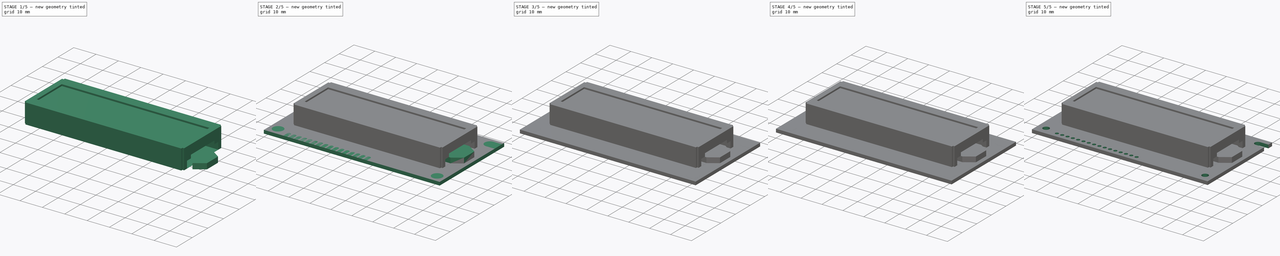
[diagram: build sequence overview — one tinted view per stage of 5, left to right]
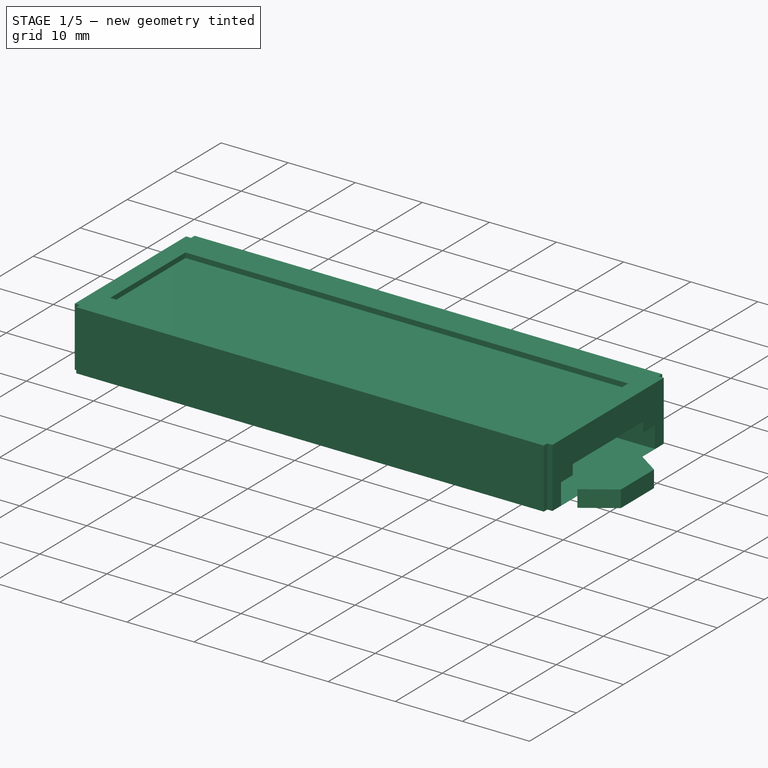
[diagram: stage 1 of 5 — iso view after this stage's code; geometry added in this stage tinted green]
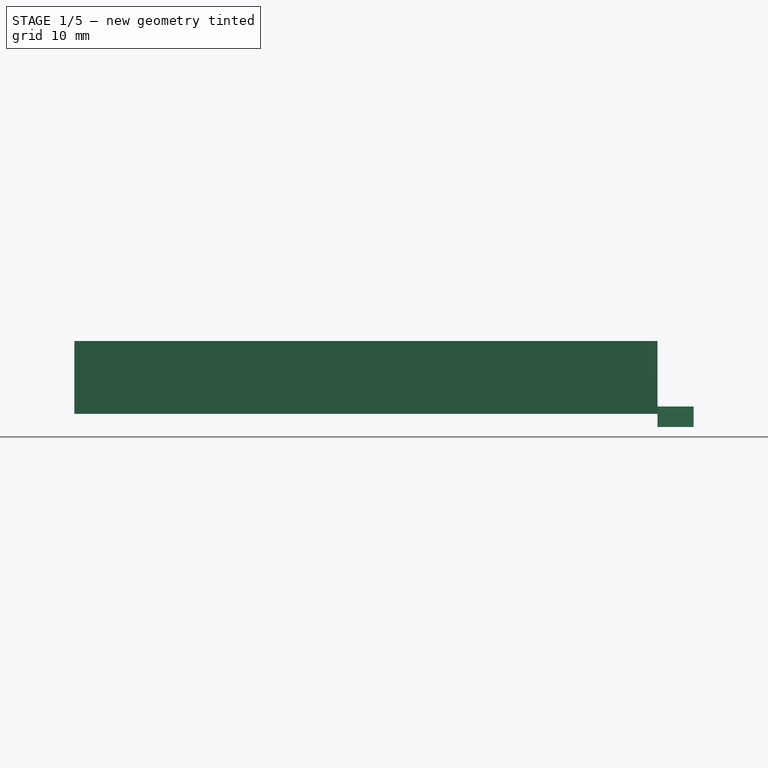
[diagram: stage 1 of 5 — front view after this stage's code; geometry added in this stage tinted green]
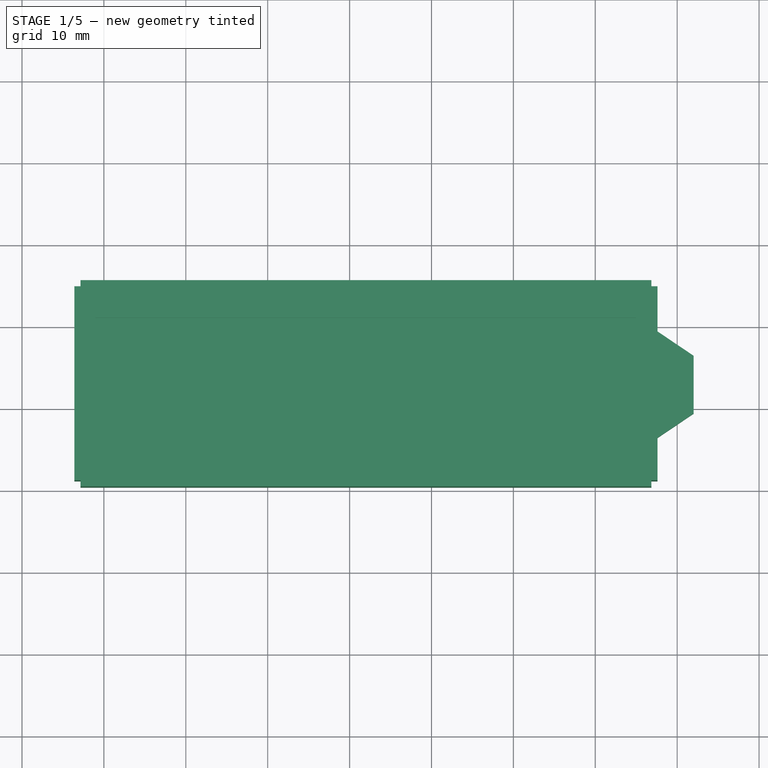
[diagram: stage 1 of 5 — top view after this stage's code; geometry added in this stage tinted green]
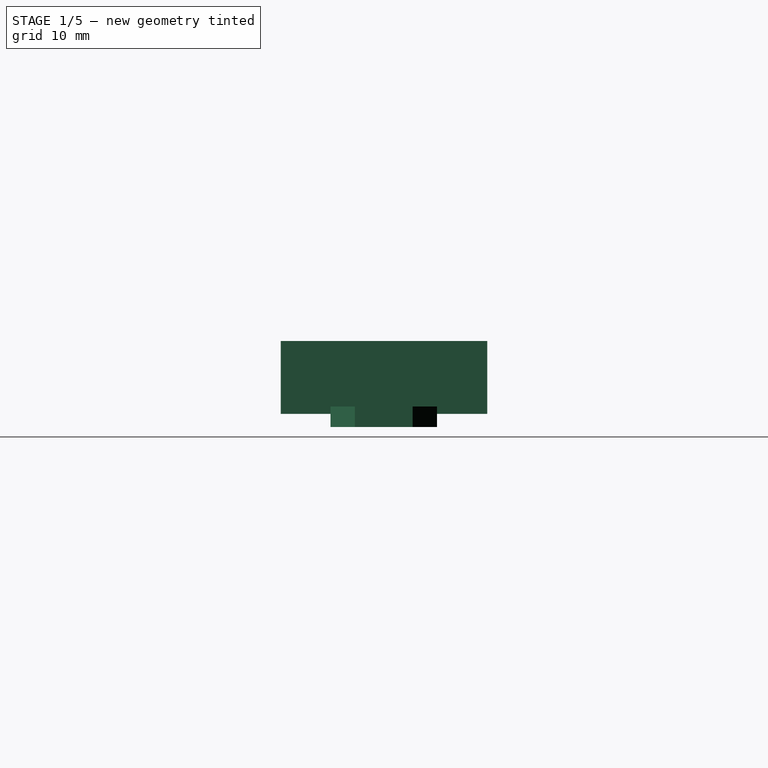
[diagram: stage 1 of 5 — right view after this stage's code; geometry added in this stage tinted green]
FCSTD DOCUMENT  (FreeCAD 0.18R4 (GitTag))
Label: LCD 12x02 (YMC162-329AACFDCL)
License: All rights reserved
LicenseURL: http://en.wikipedia.org/wiki/All_rights_reserved
objects: Part::Box×11, Part::FeaturePython×8, Part::Cylinder×5, Sketcher::SketchObject×4, PartDesign::Pad×4, PartDesign::Body×4, Part::MultiFuse×4, Part::Sphere×2, Part::Feature×2, Part::Mirroring×2, Part::Cut×2, Part::Fillet×1
note: 53 computed .brp shape members not serialized (recipe doc carries the construction recipe); baked Part::Feature solids carry a one-line shape summary decoded from their .brp

FEATURE [Part::Box] Box009  label="Solid Panel"
  AttacherType = Attacher::AttachEngine3D
  Height = 8.9
  Length = 71.2
  Placement = pos=(6.4,10.4,1.6) rot=(0,0,1;0rad)
  Width = 25.2
FEATURE [Part::Box] Box010  label="Panel Edge"
  AttacherType = Attacher::AttachEngine3D
  Height = 9
  Length = 0.75
  Placement = pos=(6.4,10.4,1.6) rot=(0,0,1;0rad)
  Width = 0.75
FEATURE [Part::FeaturePython] Array007  label="Panel Edges"  # Draft array (typed FeaturePython)
  Angle = 360
  ArrayType = 0
  Axis = (0,0,1)
  Base = -> Box010
  Center = (0,0,0)
  Fuse = false
  IntervalAxis = (0,0,0)
  IntervalX = (70.45,0,0)
  IntervalY = (0,24.45,0)
  IntervalZ = (0,0,1)
  NumberPolar = 1
  NumberX = 2
  NumberY = 2
  NumberZ = 1
FEATURE [Part::Box] Box011  label="Screen"
  AttacherType = Attacher::AttachEngine3D
  Height = 0.75
  Length = 66
  Placement = pos=(9,15,9.75) rot=(0,0,1;0rad)
  Width = 16
FEATURE [Sketcher::SketchObject] Sketch002
  MapMode = 5
  Placement = pos=(0,0,0) rot=(0.57735,0.57735,0.57735;2.0944rad)
  Support = -> [YZ_Plane002]
  sketch-geometry (8):
    g0: LineSegment StartX=12.9828 StartY=1.6197 StartZ=0 EndX=12.9828 EndY=4.7697 EndZ=0
    g1: LineSegment StartX=12.9828 StartY=4.7697 StartZ=0 EndX=15.4828 EndY=4.7697 EndZ=0
    g2: LineSegment StartX=15.4828 StartY=4.7697 StartZ=0 EndX=15.4828 EndY=6.2697 EndZ=0
    g3: LineSegment StartX=15.4828 StartY=6.2697 StartZ=0 EndX=30.4828 EndY=6.2697 EndZ=0
    g4: LineSegment StartX=30.4828 StartY=6.2697 StartZ=0 EndX=30.4828 EndY=4.7697 EndZ=0
    g5: LineSegment StartX=30.4828 StartY=4.7697 StartZ=0 EndX=32.9828 EndY=4.7697 EndZ=0
    g6: LineSegment StartX=32.9828 StartY=4.7697 StartZ=0 EndX=32.9828 EndY=1.6197 EndZ=0
    g7: LineSegment StartX=12.9828 StartY=1.6197 StartZ=0 EndX=32.9828 EndY=1.6197 EndZ=0
  constraints (22):
    c: Coincident(g0,g1)
    c: Coincident(g1,g2)
    c: Coincident(g2,g3)
    c: Coincident(g3,g4)
    c: Coincident(g4,g5)
    c: Coincident(g5,g6)
    c: Horizontal(g7)
    c: Horizontal(g1)
    c: Horizontal(g5)
    c: Vertical(g6)
    c: Vertical(g2)
    c: Vertical(g4)
    c: DistanceY(g0,g0) = 3.15
    c: DistanceX(g1,g1) = 2.5
    c: Equal(g1,g5)
    c: Vertical(g0)
    c: Equal(g0,g6)
    c: Coincident(g0,g7)
    c: Coincident(g6,g7)
    c: DistanceY(g2,g2) = 1.5
    c: Equal(g2,g4)
    c: DistanceX(g3,g3) = 15
FEATURE [PartDesign::Pad] Pad002
  Length = 75
  Length2 = 100
  Placement = pos=(0,0,0) rot=(0.57735,0.57735,0.57735;2.0944rad)
  Profile = -> Sketch002
  Type = 0
FEATURE [Sketcher::SketchObject] Sketch003
  MapMode = 5
  Support = -> [XY_Plane003]
  sketch-geometry (4):
    g0: LineSegment StartX=77.6 StartY=29.4678 StartZ=0 EndX=82.0032 EndY=26.4978 EndZ=0
    g1: LineSegment StartX=82.0032 StartY=26.4978 StartZ=0 EndX=82.0032 EndY=19.4378 EndZ=0
    g2: LineSegment StartX=82.0032 StartY=19.4378 StartZ=0 EndX=77.6 EndY=16.4678 EndZ=0
    g3: LineSegment StartX=77.6 StartY=16.4678 StartZ=0 EndX=77.6 EndY=29.4678 EndZ=0
  constraints (10):
    c: Coincident(g0,g1)
    c: Coincident(g1,g2)
    c: Coincident(g2,g3)
    c: Coincident(g3,g0)
    c: Vertical(g3)
    c: Vertical(g1)
    c: DistanceY(g3,g3) = 13
    c: Angle(g0,g1) = 2.16421
    c: Equal(g0,g2)
    c: DistanceY(g1,g1) = 7.06
FEATURE [PartDesign::Pad] Pad003
  Length = 2.5
  Length2 = 100
  Profile = -> Sketch003
  Type = 0
FEATURE [Part::MultiFuse] Fusion002004  label="Empy Spaces"
  Shapes = -> [Array007,Body002,Box011]
FEATURE [Part::Cut] Cut001  label="Panel"
  Base = -> Box009
  Tool = -> Fusion002004
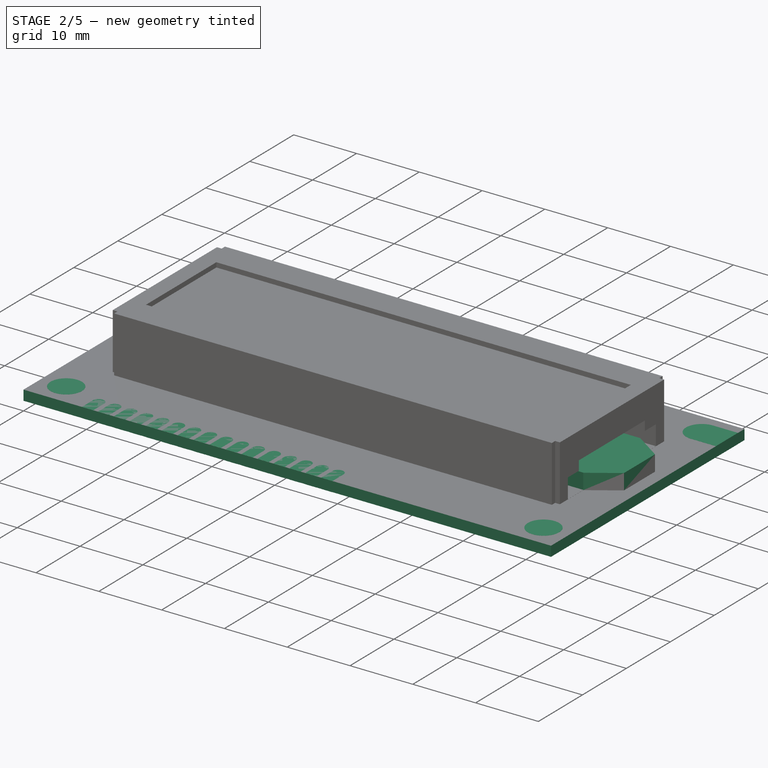
[diagram: stage 2 of 5 — iso view after this stage's code; geometry added in this stage tinted green]
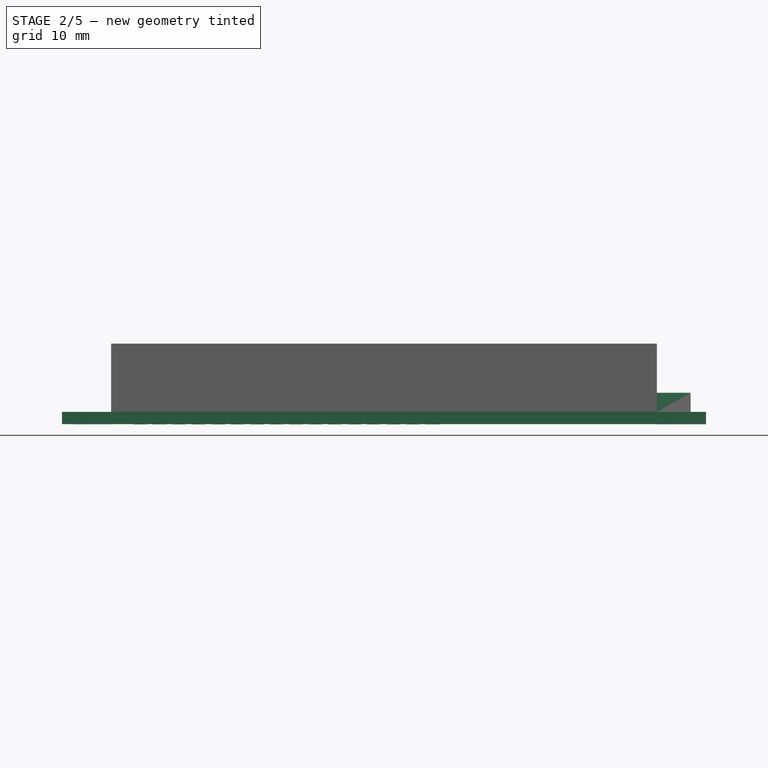
[diagram: stage 2 of 5 — front view after this stage's code; geometry added in this stage tinted green]
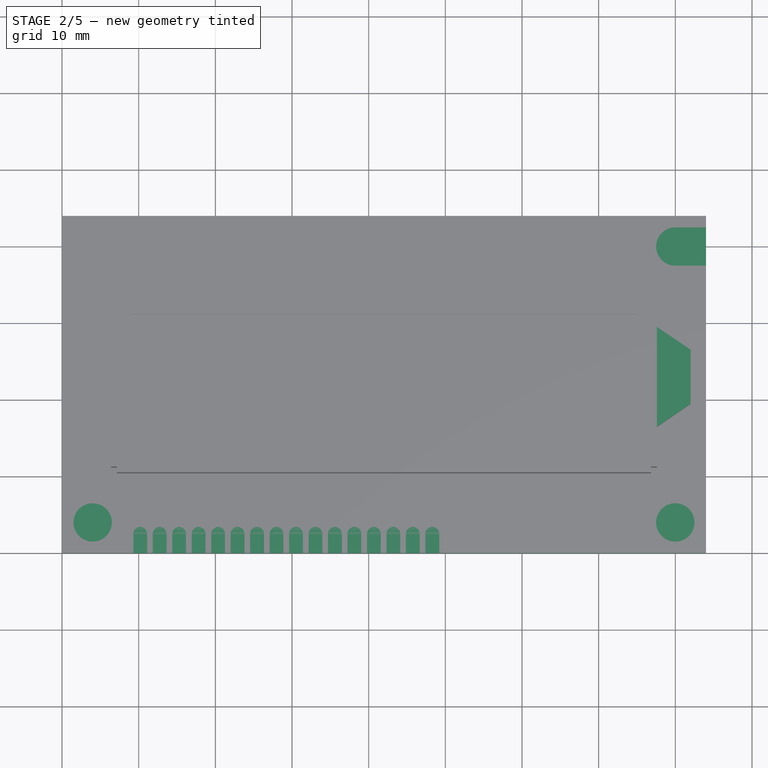
[diagram: stage 2 of 5 — top view after this stage's code; geometry added in this stage tinted green]
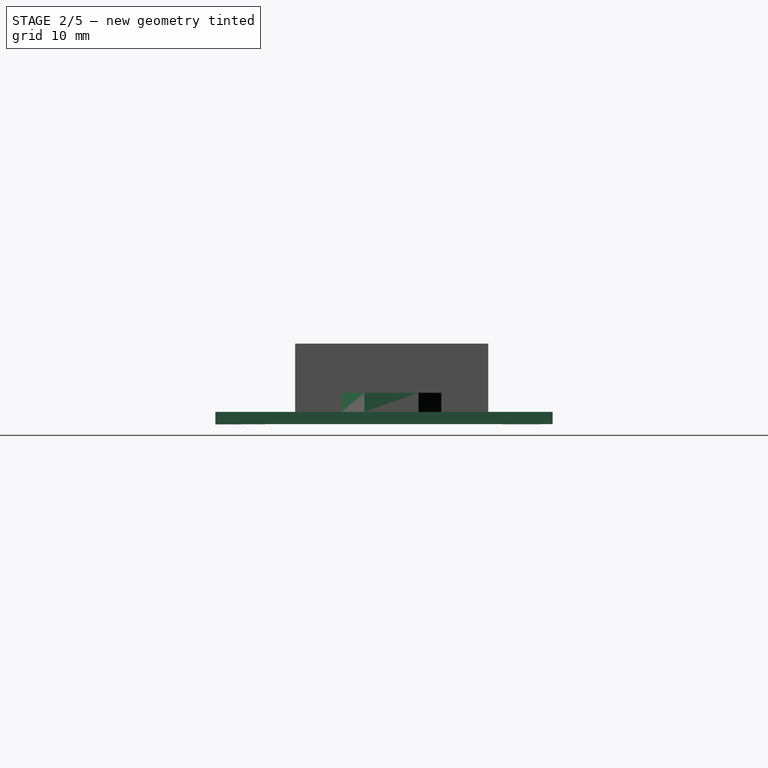
[diagram: stage 2 of 5 — right view after this stage's code; geometry added in this stage tinted green]
FEATURE [Part::Box] Box  label="PCB"
  AttacherType = Attacher::AttachEngine3D
  Height = 1.6
  Length = 84
  Width = 44
FEATURE [Part::Cylinder] Cylinder  label="Land Sx"
  Angle = 360
  AttacherType = Attacher::AttachEngine3D
  Height = 1.62
  Placement = pos=(4,4,-0.01) rot=(0,0,1;0rad)
  Radius = 2.5
FEATURE [Part::Cylinder] Cylinder005  label="Land Dx"
  Angle = 360
  AttacherType = Attacher::AttachEngine3D
  Height = 1.62
  Placement = pos=(80,4,-0.01) rot=(0,0,1;0rad)
  Radius = 2.5
FEATURE [Part::Feature] Fusion001  label="Open Land Sx"
  shape: bbox 6.5 x 5 x 1.62 mm, 6 faces (baked)
FEATURE [Part::Mirroring] Part__Mirroring  label="Open Land Dx"
  Base = (0,0,0)
  Normal = (1,0,0)
  Placement = pos=(84,0,0) rot=(0,0,1;0rad)
  Source = -> Fusion001
FEATURE [Sketcher::SketchObject] Sketch
  MapMode = 5
  Support = -> [XY_Plane]
  sketch-geometry (4):
    g0: LineSegment StartX=9.30053 StartY=2.51039 StartZ=0 EndX=9.30053 EndY=0.0103908 EndZ=0
    g1: LineSegment StartX=11.1005 StartY=2.51039 StartZ=0 EndX=11.1005 EndY=0.0103908 EndZ=0
    g2: LineSegment StartX=9.30053 StartY=0.0103908 StartZ=0 EndX=11.1005 EndY=0.0103908 EndZ=0
    g3: ArcOfCircle CenterX=10.2005 CenterY=2.51039 CenterZ=0 NormalX=0 NormalY=0 NormalZ=1 AngleXU=0 Radius=0.9 StartAngle=0 EndAngle=3.14159
  constraints (9):
    c: Equal(g0,g1)
    c: DistanceY(g0,g0) = 2.5
    c: Tangent(g0,g3) = -1.5708
    c: Tangent(g1,g3) = 1.5708
    c: Vertical(g0)
    c: Vertical(g1)
    c: Coincident(g0,g2)
    c: Coincident(g1,g2)
    c: DistanceX(g2,g2) = 1.8
FEATURE [PartDesign::Pad] Pad
  Length = 1.62
  Length2 = 100
  Profile = -> Sketch
  Type = 0
FEATURE [PartDesign::Body] Body  label="Solid Pad"
  Group = -> [Sketch,Pad]
  Origin = -> Origin
  Placement = pos=(0,0,-0.01) rot=(0,0,1;0rad)
  Tip = -> Pad
FEATURE [Part::FeaturePython] Array  label="Solid Pads"  # Draft array (typed FeaturePython)
  Angle = 360
  ArrayType = 0
  Axis = (0,0,1)
  Base = -> Body
  Center = (0,0,0)
  Fuse = false
  IntervalAxis = (0,0,0)
  IntervalX = (2.54,0,0)
  IntervalY = (0,1,0)
  IntervalZ = (0,0,1)
  NumberPolar = 1
  NumberX = 16
  NumberY = 1
  NumberZ = 1
  Placement = pos=(0,0,-0.01) rot=(0,0,1;0rad)
FEATURE [PartDesign::Body] Body002  label="Screen Lateral Hole"
  Group = -> [Sketch002,Pad002]
  Origin = -> Origin002
  Placement = pos=(9,0,0) rot=(0,0,1;0rad)
  Tip = -> Pad002
FEATURE [Part::Box] Box012  label="Cube"
  AttacherType = Attacher::AttachEngine3D
  Height = 2.5
  Length = 68.6
  Placement = pos=(9,16.5,1.6) rot=(0,0,1;0rad)
  Width = 13
FEATURE [PartDesign::Body] Body003
  Group = -> [Sketch003,Pad003]
  Origin = -> Origin003
  Placement = pos=(0,0,1.6) rot=(0,0,1;0rad)
  Tip = -> Pad003
FEATURE [Part::MultiFuse] Fusion002003  label="Backlight Panel"
  Shapes = -> [Box012,Body003]
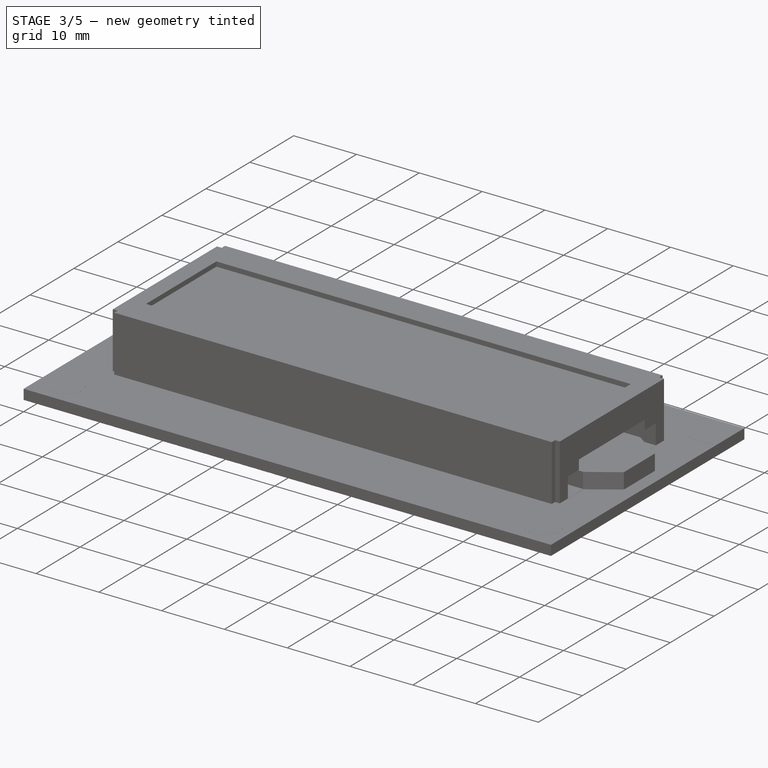
[diagram: stage 3 of 5 — iso view after this stage's code; geometry added in this stage tinted green]
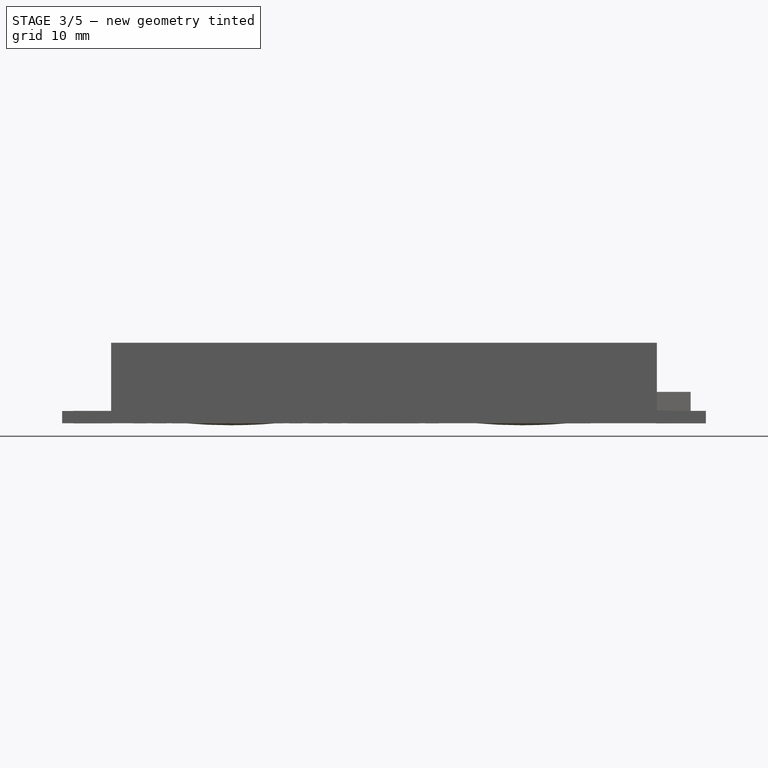
[diagram: stage 3 of 5 — front view after this stage's code; geometry added in this stage tinted green]
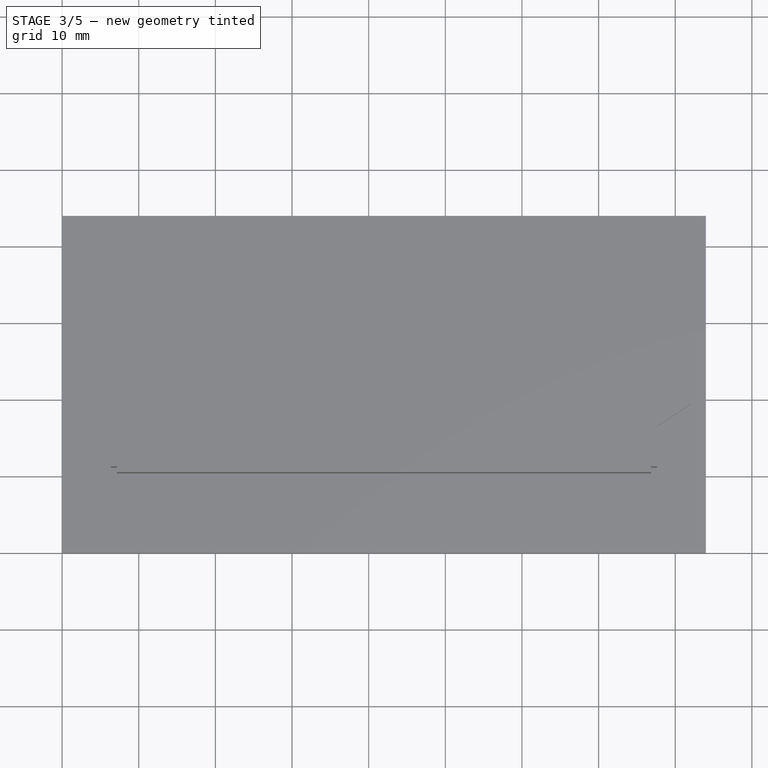
[diagram: stage 3 of 5 — top view after this stage's code; geometry added in this stage tinted green]
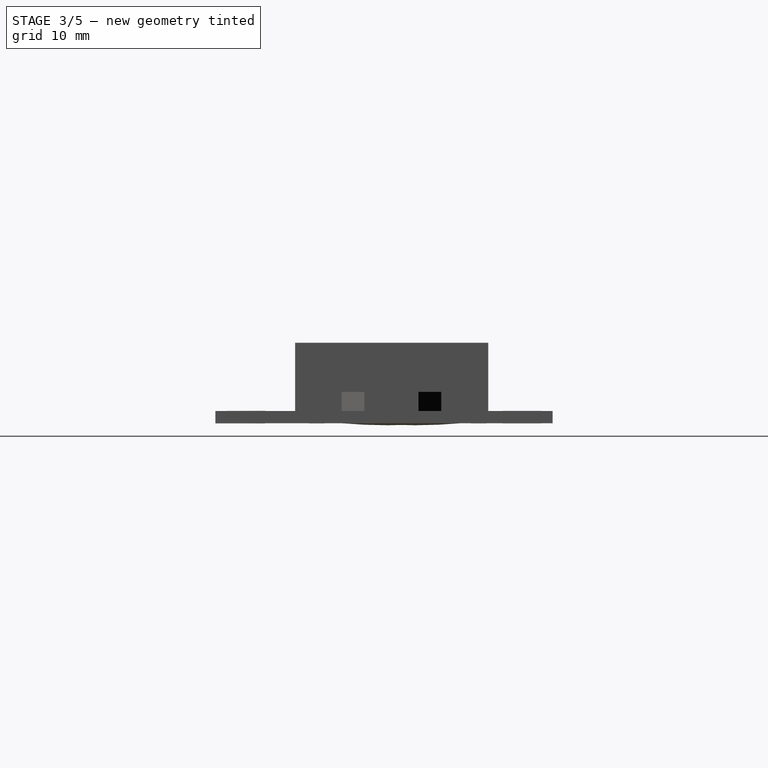
[diagram: stage 3 of 5 — right view after this stage's code; geometry added in this stage tinted green]
FEATURE [Part::Box] Box008  label="LCD Katode"
  AttacherType = Attacher::AttachEngine3D
  Height = 0.01
  Length = 3
  Placement = pos=(80,17,-0.01) rot=(0,0,1;0rad)
  Width = 4
FEATURE [Part::Sphere] Sphere001  label="Rubber Pad 2"
  Angle1 = -90
  Angle2 = -85
  Angle3 = 360
  AttacherType = Attacher::AttachEngine3D
  Placement = pos=(60,26,69.74) rot=(0,0,1;0rad)
  Radius = 70
FEATURE [Part::Sphere] Sphere002  label="Rubber Pad 1"
  Angle1 = -90
  Angle2 = -85
  Angle3 = 360
  AttacherType = Attacher::AttachEngine3D
  Placement = pos=(22,22.5,69.74) rot=(0,0,1;0rad)
  Radius = 70
FEATURE [Part::Box] Box005  label="LCD COPPER BOTTOM SAMPLE"
  AttacherType = Attacher::AttachEngine3D
  Height = 1
  Length = 6
  Placement = pos=(15,12.25,-0.01) rot=(0,0,1;0rad)
  Width = 2
FEATURE [Part::Box] Box006  label="LCD COPPER TOP SAMPLE"
  AttacherType = Attacher::AttachEngine3D
  Height = 1
  Length = 6
  Placement = pos=(15,33.4,-0.01) rot=(0,0,1;0rad)
  Width = 2
FEATURE [Part::FeaturePython] Array005  label="LCD Copper Top"  # Draft array (typed FeaturePython)
  Angle = 360
  ArrayType = 0
  Axis = (0,0,1)
  Base = -> Box006
  Center = (0,0,0)
  Fuse = false
  IntervalAxis = (0,0,0)
  IntervalX = (24,0,0)
  IntervalY = (0,1,0)
  IntervalZ = (0,0,1)
  NumberPolar = 1
  NumberX = 3
  NumberY = 1
  NumberZ = 1
FEATURE [Part::FeaturePython] Array004  label="LCD Copper Bottom"  # Draft array (typed FeaturePython)
  Angle = 360
  ArrayType = 0
  Axis = (0,0,1)
  Base = -> Box005
  Center = (0,0,0)
  Fuse = false
  IntervalAxis = (0,0,0)
  IntervalX = (24,0,0)
  IntervalY = (0,1,0)
  IntervalZ = (0,0,1)
  NumberPolar = 1
  NumberX = 3
  NumberY = 1
  NumberZ = 1
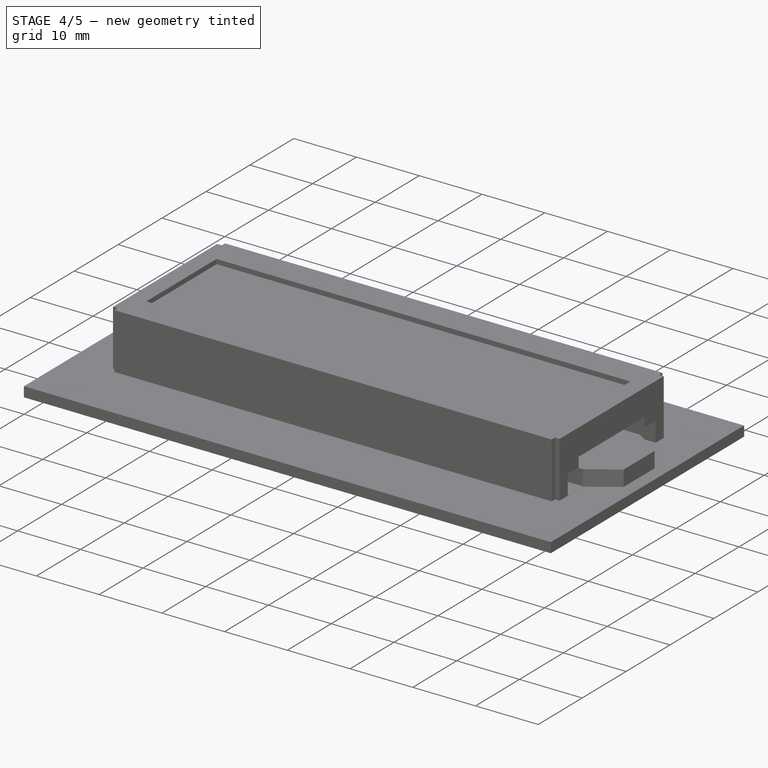
[diagram: stage 4 of 5 — iso view after this stage's code; geometry added in this stage tinted green]
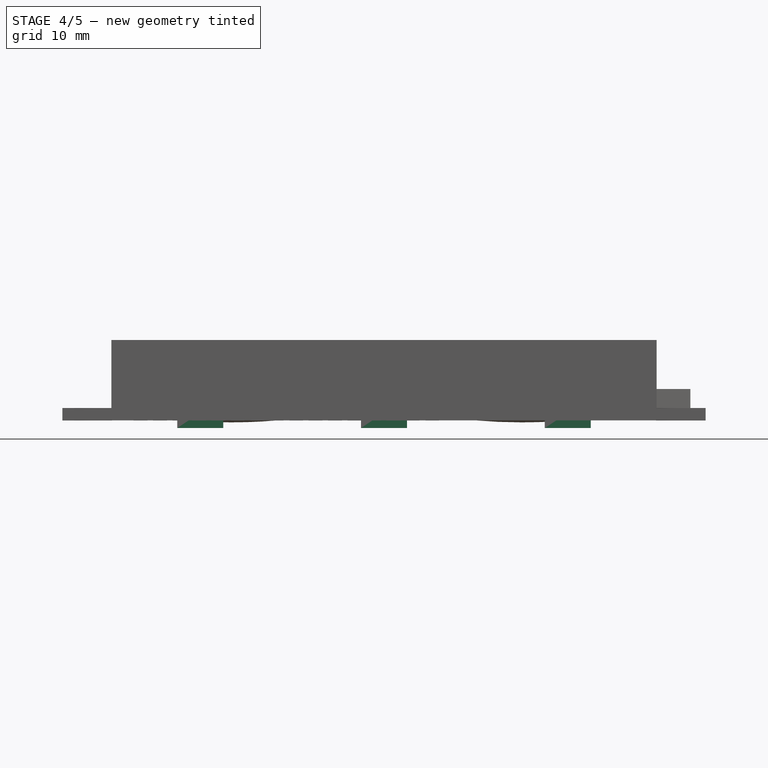
[diagram: stage 4 of 5 — front view after this stage's code; geometry added in this stage tinted green]
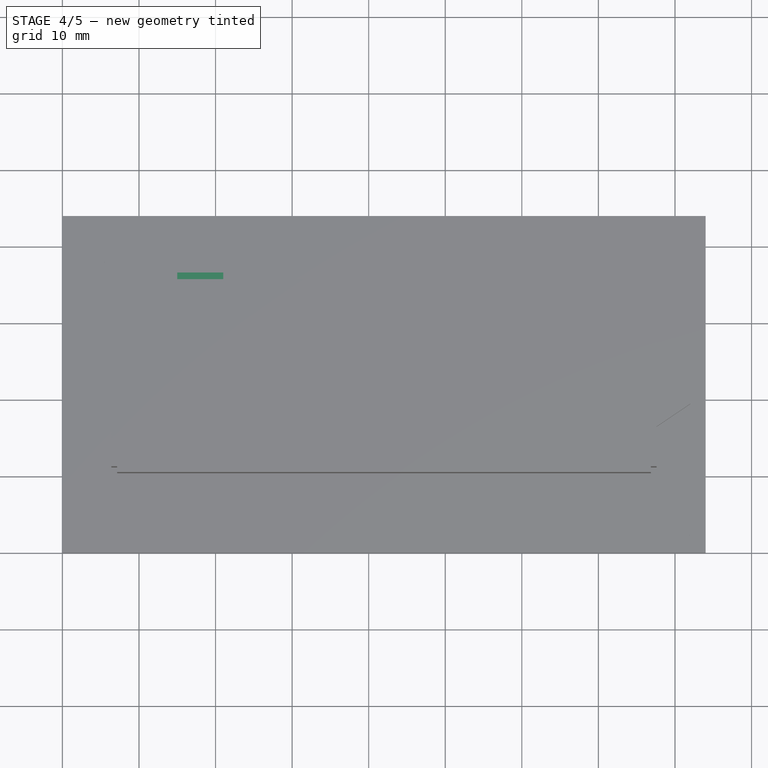
[diagram: stage 4 of 5 — top view after this stage's code; geometry added in this stage tinted green]
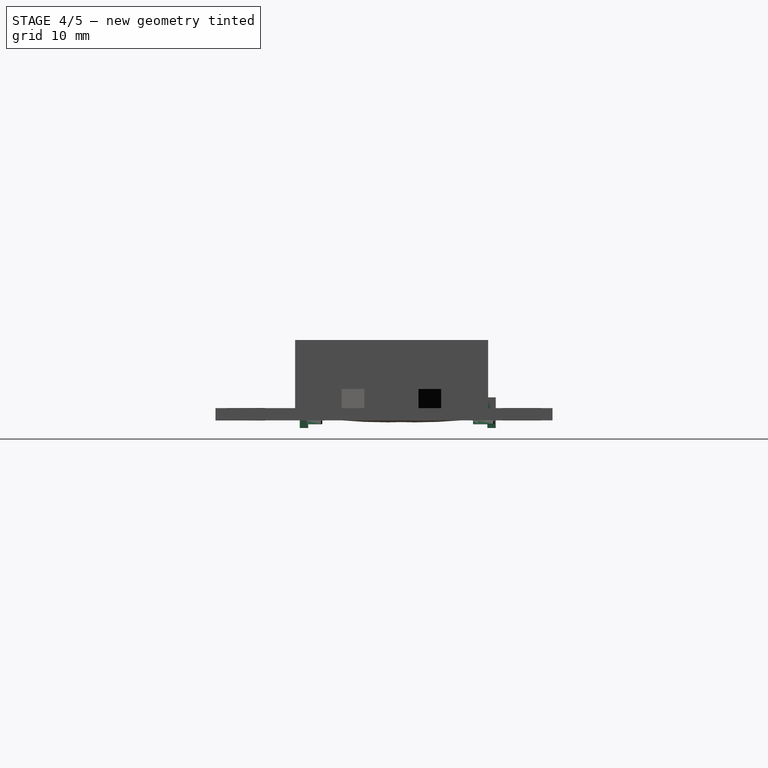
[diagram: stage 4 of 5 — right view after this stage's code; geometry added in this stage tinted green]
FEATURE [Sketcher::SketchObject] Sketch001
  MapMode = 5
  Support = -> [XY_Plane001]
  sketch-geometry (6):
    g0: LineSegment StartX=20.5392 StartY=13.9594 StartZ=0 EndX=18.1007 EndY=12.0695 EndZ=0
    g1: LineSegment StartX=18.1007 StartY=12.0695 StartZ=0 EndX=15.2334 EndY=11.387 EndZ=0
    g2: LineSegment StartX=15.2334 StartY=11.387 StartZ=0 EndX=15.2981 EndY=11.1155 EndZ=0
    g3: LineSegment StartX=15.2981 StartY=11.1155 StartZ=0 EndX=18.1714 EndY=11.7994 EndZ=0
    g4: LineSegment StartX=18.1714 StartY=11.7994 StartZ=0 EndX=20.6964 EndY=13.7565 EndZ=0
    g5: LineSegment StartX=20.6964 StartY=13.7565 StartZ=0 EndX=20.5392 EndY=13.9594 EndZ=0
  constraints (11):
    c: Coincident(g0,g1)
    c: Coincident(g1,g2)
    c: Coincident(g2,g3)
    c: Coincident(g3,g4)
    c: Coincident(g4,g5)
    c: Parallel(g4,g0)
    c: Parallel(g1,g3)
    c: Perpendicular(g2,g1)
    c: Perpendicular(g5,g4)
    c: Coincident(g0,g5)
    c: Angle(g4,g3) = 2.71591
FEATURE [PartDesign::Pad] Pad001
  Length = 0.5
  Length2 = 100
  Profile = -> Sketch001
  Type = 0
FEATURE [PartDesign::Body] Body001  label="BACK CURVED CONTACT CORE"
  Group = -> [Sketch001,Pad001]
  Origin = -> Origin001
  Placement = pos=(0,0,-0.5) rot=(0,0,1;0rad)
  Tip = -> Pad001
FEATURE [Part::FeaturePython] Array006  label="BACK CURVE CONTACTS"  # Draft array (typed FeaturePython)
  Angle = 360
  ArrayType = 0
  Axis = (0,0,1)
  Base = -> Body001
  Center = (0,0,0)
  Fuse = false
  IntervalAxis = (0,0,0)
  IntervalX = (24,0,0)
  IntervalY = (0,22.5,0)
  IntervalZ = (0,0,1)
  NumberPolar = 1
  NumberX = 3
  NumberY = 2
  NumberZ = 1
FEATURE [Part::Fillet] Fillet  label="LCD Back Curve Contacts"
  Base = -> Array006
  Edges = 108 edges r=0.05: [Edge1,Edge2,Edge3,Edge4,Edge5,Edge6,Edge7,Edge8,Edge9,Edge10,Edge11,Edge12,Edge13,Edge14,Edge15,Edge16,Edge17,Edge18,Edge19,Edge20,Edge21,Edge22,Edge23,Edge24,Edge25,Edge26,Edge27,Edge28,Edge29,Edge30,Edge31,Edge32,Edge33,Edge34,Edge35,Edge36,Edge37,Edge38,Edge39,Edge40,Edge41,Edge42,Edge43,Edge44,+64 more]
FEATURE [Part::Box] Box007  label="LCD Anode"
  AttacherType = Attacher::AttachEngine3D
  Height = 0.01
  Length = 3
  Placement = pos=(80,25.5,-0.01) rot=(0,0,1;0rad)
  Width = 4
FEATURE [Part::Box] Box003  label="Square Hole Sample Bottom"
  AttacherType = Attacher::AttachEngine3D
  Height = 4
  Length = 6
  Placement = pos=(15,11,-1) rot=(0,0,1;0rad)
  Width = 1.1
FEATURE [Part::Box] Box004  label="Square Hole Sample Top"
  AttacherType = Attacher::AttachEngine3D
  Height = 4
  Length = 6
  Placement = pos=(15,35.5,-1) rot=(0,0,1;0rad)
  Width = 1.1
FEATURE [Part::FeaturePython] Array002  label="Square Holese Bottom"  # Draft array (typed FeaturePython)
  Angle = 360
  ArrayType = 0
  Axis = (0,0,1)
  Base = -> Box003
  Center = (0,0,0)
  Fuse = false
  IntervalAxis = (0,0,0)
  IntervalX = (24,0,0)
  IntervalY = (0,1,0)
  IntervalZ = (0,0,1)
  NumberPolar = 1
  NumberX = 3
  NumberY = 1
  NumberZ = 1
FEATURE [Part::MultiFuse] Fusion002002  label="SOLID PCB"
  Shapes = -> [Fillet,Box007,Box008,Sphere001,Sphere002,Array005,Array004,Box,Cylinder,Cylinder005,Part__Mirroring,Fusion001,Array]
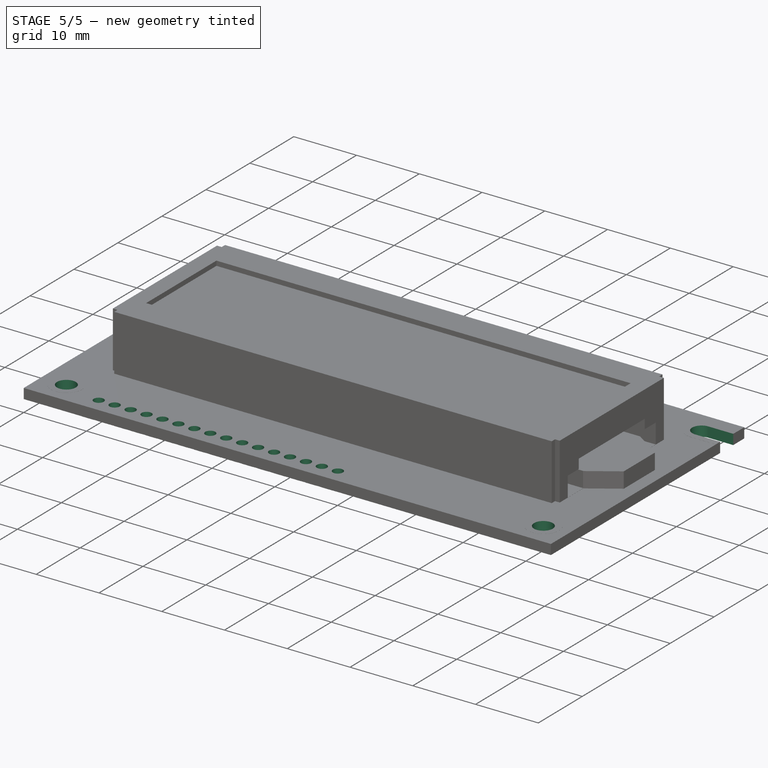
[diagram: stage 5 of 5 — iso view after this stage's code; geometry added in this stage tinted green]
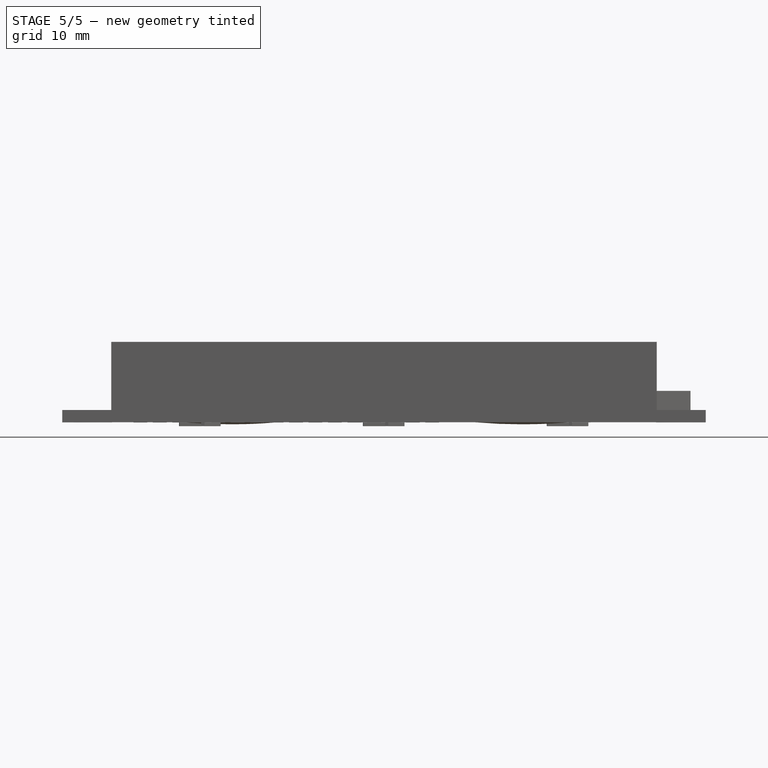
[diagram: stage 5 of 5 — front view after this stage's code; geometry added in this stage tinted green]
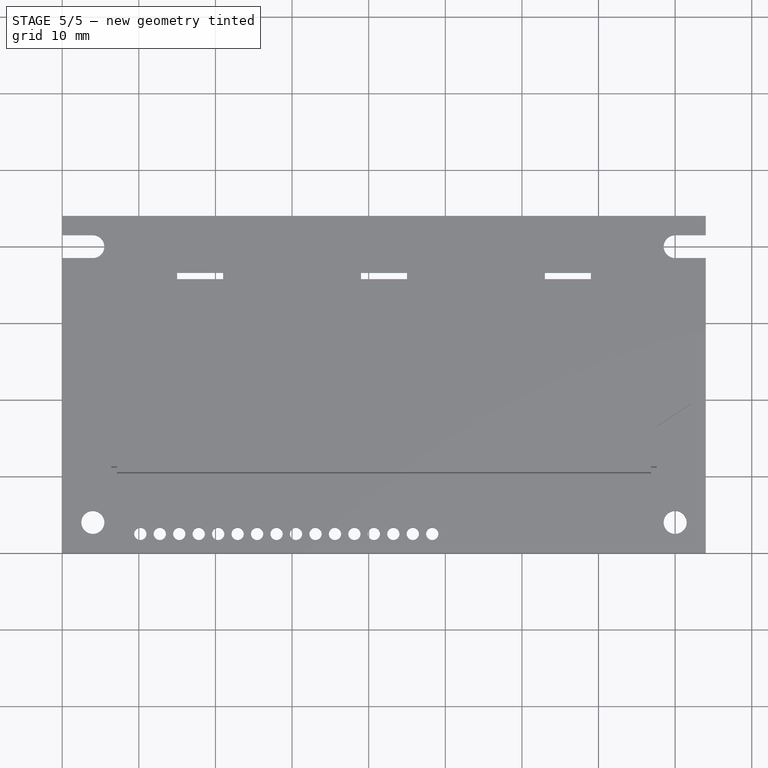
[diagram: stage 5 of 5 — top view after this stage's code; geometry added in this stage tinted green]
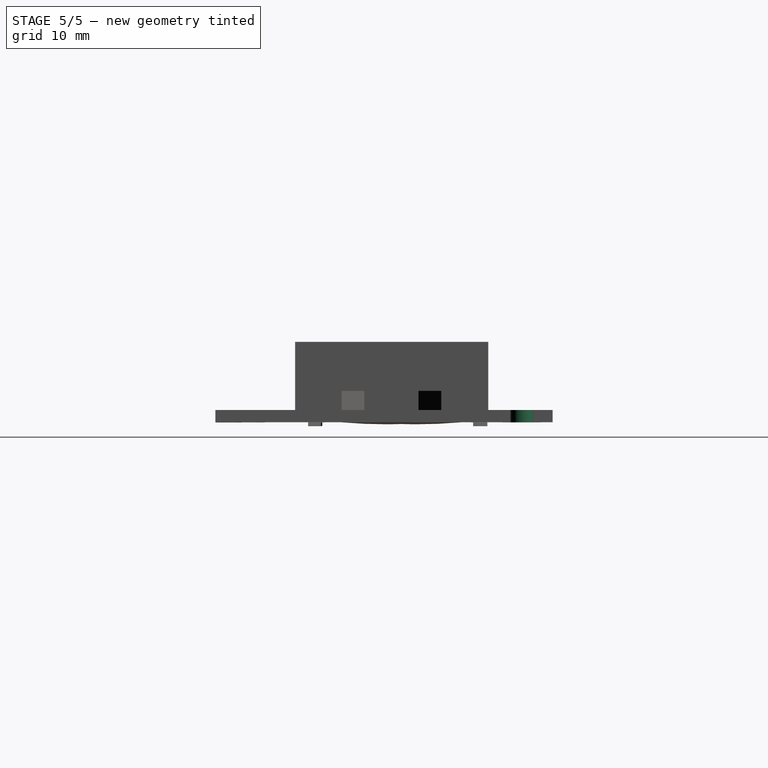
[diagram: stage 5 of 5 — right view after this stage's code; geometry added in this stage tinted green]
FEATURE [Part::Cylinder] Cylinder002  label="Hole Sx"
  Angle = 360
  AttacherType = Attacher::AttachEngine3D
  Height = 4
  Placement = pos=(4,4,-1) rot=(0,0,1;0rad)
  Radius = 1.5
FEATURE [Part::Cylinder] Cylinder006  label="Hole Dx"
  Angle = 360
  AttacherType = Attacher::AttachEngine3D
  Height = 4
  Placement = pos=(80,4,-1) rot=(0,0,1;0rad)
  Radius = 1.5
FEATURE [Part::Cylinder] Cylinder004  label="Pad Hole Sample"
  Angle = 360
  AttacherType = Attacher::AttachEngine3D
  Height = 4
  Placement = pos=(10.2,2.5,-1) rot=(0,0,1;0rad)
  Radius = 0.8
FEATURE [Part::FeaturePython] Array001  label="Pad Holes"  # Draft array (typed FeaturePython)
  Angle = 360
  ArrayType = 0
  Axis = (0,0,1)
  Base = -> Cylinder004
  Center = (0,0,0)
  Fuse = false
  IntervalAxis = (0,0,0)
  IntervalX = (2.54,0,0)
  IntervalY = (0,1,0)
  IntervalZ = (0,0,1)
  NumberPolar = 1
  NumberX = 16
  NumberY = 1
  NumberZ = 1
FEATURE [Part::Feature] Fusion002001  label="Open Hole Sx"
  shape: bbox 5.5 x 3 x 4 mm, 6 faces (baked)
FEATURE [Part::Mirroring] Part__Mirroring001  label="Open Hole Dx"
  Base = (0,0,0)
  Normal = (1,0,0)
  Placement = pos=(84,0,0) rot=(0,0,1;0rad)
  Source = -> Fusion002001
FEATURE [Part::FeaturePython] Array003  label="Square Holes Top"  # Draft array (typed FeaturePython)
  Angle = 360
  ArrayType = 0
  Axis = (0,0,1)
  Base = -> Box004
  Center = (0,0,0)
  Fuse = false
  IntervalAxis = (0,0,0)
  IntervalX = (24,0,0)
  IntervalY = (0,1,0)
  IntervalZ = (0,0,1)
  NumberPolar = 1
  NumberX = 3
  NumberY = 1
  NumberZ = 1
FEATURE [Part::MultiFuse] Fusion  label="HOLES"
  Shapes = -> [Array002,Array003,Fusion002001,Array001,Part__Mirroring001,Cylinder006,Cylinder002]
FEATURE [Part::Cut] Cut  label="Drilled PCB"
  Base = -> Fusion002002
  Tool = -> Fusion
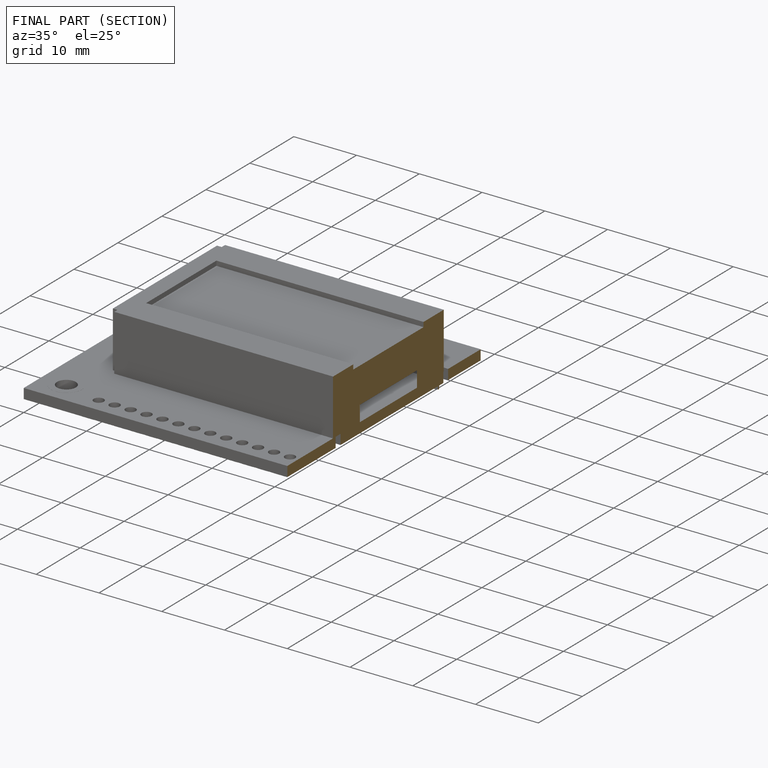
[diagram: finished part — half-section view (interior)]
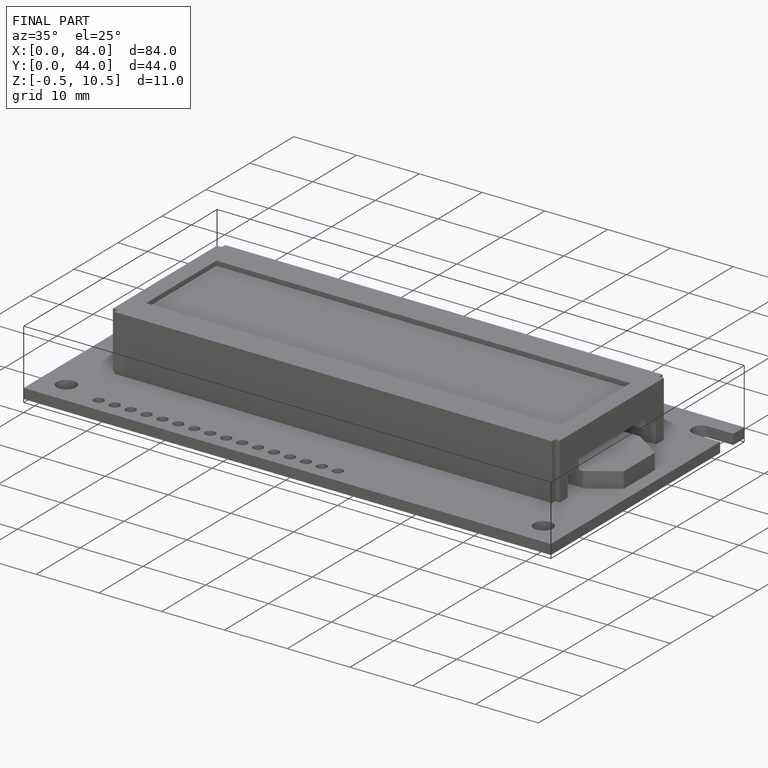
[diagram: finished part — iso view with bounding-box wireframe]
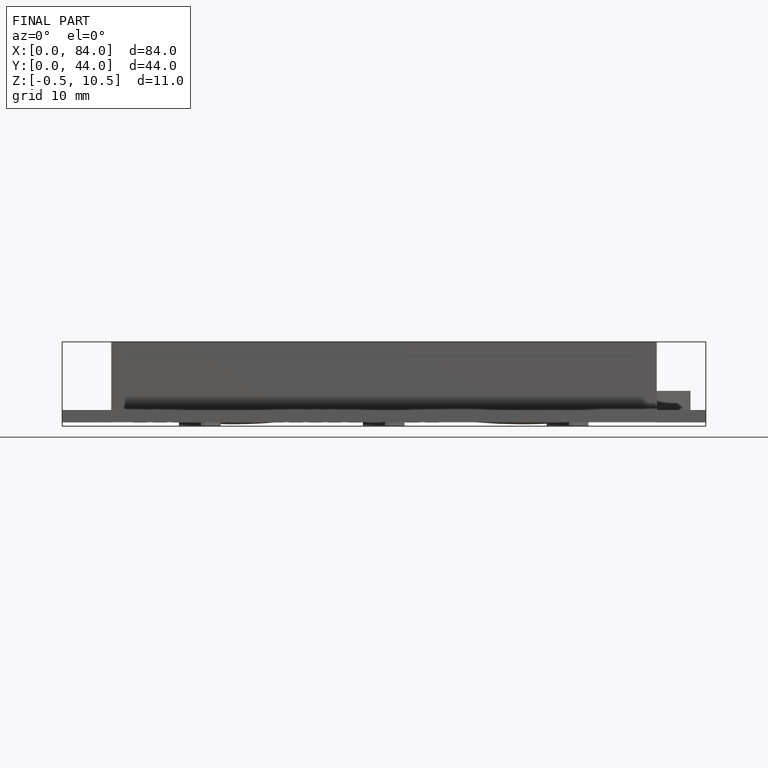
[diagram: finished part — front view with bounding-box wireframe]
